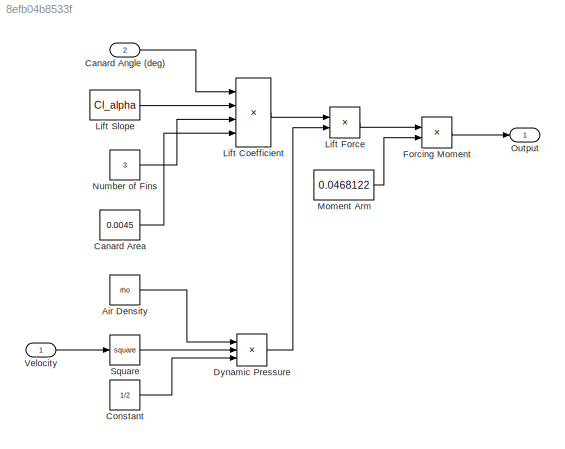
MODEL slx_8efb04b8533f
KIND model
CONFIG AbsTol = auto
CONFIG EnableMultiTasking = off
CONFIG FixedStep = auto
CONFIG MaxStep = auto
CONFIG MinStep = auto
CONFIG RelTol = 1e-3
CONFIG SampleTimeConstraint = Unconstrained
CONFIG SolverName = VariableStepAuto
CONFIG StartTime = 0.0
CONFIG StopTime = 10.0
BLOCK [Constant] Air Density
  Value = rho
BLOCK [Inport] Canard Angle (deg)
  Port = 2
BLOCK [Constant] Canard Area
  Value = 0.0045
BLOCK [Constant] Constant
  Value = 1/2
BLOCK [Product] Dynamic Pressure
  Inputs = 3
BLOCK [Product] Forcing Moment
BLOCK [Product] Lift Coefficient
  Inputs = 4
BLOCK [Product] Lift Force
BLOCK [Constant] Lift Slope
  Value = Cl_alpha
BLOCK [Constant] Moment Arm
  Value = 0.0468122
BLOCK [Constant] Number of Fins
  Value = 3
BLOCK [Outport] Output
BLOCK [Math] Square
  Operator = square
BLOCK [Inport] Velocity
LINE Air Density:1 -> Dynamic Pressure:1
LINE Canard Angle (deg):1 -> Lift Coefficient:1
LINE Canard Area:1 -> Lift Coefficient:4
LINE Constant:1 -> Dynamic Pressure:3
LINE Dynamic Pressure:1 -> Lift Force:2
LINE Forcing Moment:1 -> Output:1
LINE Lift Coefficient:1 -> Lift Force:1
LINE Lift Force:1 -> Forcing Moment:1
LINE Lift Slope:1 -> Lift Coefficient:2
LINE Moment Arm:1 -> Forcing Moment:2
LINE Number of Fins:1 -> Lift Coefficient:3
LINE Square:1 -> Dynamic Pressure:2
LINE Velocity:1 -> Square:1
